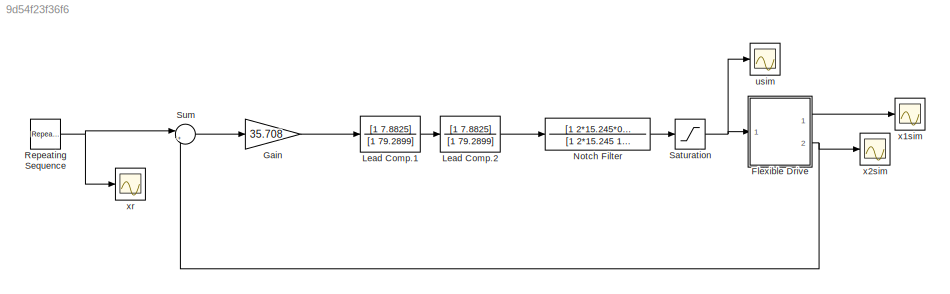
MODEL slx_9d54f23f36f6
KIND model
CONFIG AbsTol = auto
CONFIG EnableMultiTasking = on
CONFIG FixedStep = Ts
CONFIG MaxStep = auto
CONFIG MinStep = auto
CONFIG RelTol = 1e-3
CONFIG SampleTimeConstraint = Unconstrained
CONFIG SolverName = ode4
CONFIG StartTime = 0.0
CONFIG StopTime = 4
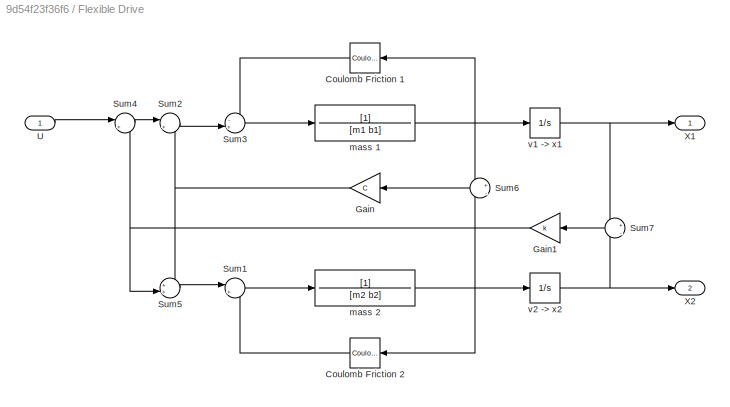
BLOCK [SubSystem] Flexible Drive
  Ports = [1, 2]
  RequestExecContextInheritance = off
BLOCK [Reference] Flexible Drive/Coulomb Friction 1  REF=simulink/Discontinuities/Coulomb &
Viscous Friction
  NameLocation = top
  Ports = [1, 1]
  SourceBlock = simulink/Discontinuities/Coulomb &\nViscous Friction
  SourceProductBaseCode = SL
  SourceType = Coulombic and Viscous Friction
BLOCK [Reference] Flexible Drive/Coulomb Friction 2  REF=simulink/Discontinuities/Coulomb &
Viscous Friction
  Ports = [1, 1]
  SourceBlock = simulink/Discontinuities/Coulomb &\nViscous Friction
  SourceProductBaseCode = SL
  SourceType = Coulombic and Viscous Friction
BLOCK [Gain] Flexible Drive/Gain
  Gain = C
  NameLocation = top
  OutDataTypeStr = Inherit: Same as input
  ParamDataTypeStr = Inherit: Same as input
  SaturateOnIntegerOverflow = on
BLOCK [Gain] Flexible Drive/Gain1
  Gain = k
  NameLocation = top
  OutDataTypeStr = Inherit: Same as input
  ParamDataTypeStr = Inherit: Same as input
  SaturateOnIntegerOverflow = on
BLOCK [Sum] Flexible Drive/Sum1
  Inputs = |+-
  Ports = [2, 1]
  SaturateOnIntegerOverflow = on
BLOCK [Sum] Flexible Drive/Sum2
  Inputs = |+-
  Ports = [2, 1]
  SaturateOnIntegerOverflow = on
BLOCK [Sum] Flexible Drive/Sum3
  Inputs = -+|
  Ports = [2, 1]
  SaturateOnIntegerOverflow = on
BLOCK [Sum] Flexible Drive/Sum4
  Inputs = |+-
  Ports = [2, 1]
  SaturateOnIntegerOverflow = on
BLOCK [Sum] Flexible Drive/Sum5
  Inputs = ++|
  Ports = [2, 1]
  SaturateOnIntegerOverflow = on
BLOCK [Sum] Flexible Drive/Sum6
  Inputs = +|-
  NameLocation = top
  Ports = [2, 1]
  SaturateOnIntegerOverflow = on
BLOCK [Sum] Flexible Drive/Sum7
  Inputs = +|-
  NameLocation = top
  Ports = [2, 1]
  SaturateOnIntegerOverflow = on
BLOCK [Inport] Flexible Drive/U
BLOCK [Outport] Flexible Drive/X1
  VectorParamsAs1DForOutWhenUnconnected = off
BLOCK [Outport] Flexible Drive/X2
  Port = 2
  VectorParamsAs1DForOutWhenUnconnected = off
BLOCK [TransferFcn] Flexible Drive/mass 1
  Denominator = [m1 b1]
  NameLocation = top
BLOCK [TransferFcn] Flexible Drive/mass 2
  Denominator = [m2 b2]
  NameLocation = top
BLOCK [Integrator] Flexible Drive/v1 -> x1
  Ports = [1, 1]
BLOCK [Integrator] Flexible Drive/v2 -> x2
  Ports = [1, 1]
BLOCK [Gain] Gain
  Gain = 35.708
BLOCK [TransferFcn] Lead Comp.1
  Denominator = [1 79.2899]
  Numerator = [1 7.8825]
BLOCK [TransferFcn] Lead Comp.2
  Denominator = [1 79.2899]
  Numerator = [1 7.8825]
BLOCK [TransferFcn] Notch Filter
  Denominator = [1 2*15.245 15.245^2]
  Numerator = [1 2*15.245*0.707 15.245^2]
BLOCK [Reference] Repeating Sequence  REF=simulink/Sources/Repeating
Sequence
  Ports = [0, 1]
  SourceBlock = simulink/Sources/Repeating\nSequence
  SourceProductBaseCode = SL
  SourceType = Repeating table
BLOCK [Saturate] Saturation
  LowerLimit = -8
  UpperLimit = 8
BLOCK [Sum] Sum
  Inputs = |+-
  Ports = [2, 1]
BLOCK [Scope] usim
  Floating = off
  NumInputPorts = 1
  Ports = [1]
  ScopeSpecificationString = Simulink.scopes.TimeScopeBlockCfg('CurrentConfiguration', extmgr.ConfigurationSet(extmgr.Configuration('Core','General UI',true),extmgr.Configuration('Core','Source UI',true),extmgr.Configuration('Sources','WiredSimulink',true,'DataLoggingVariableName','usim','DataLogging',true,'DataLoggingSaveFormat','StructureWithTime'),extmgr.Configuration('Visuals','Time Domain',true,'SerializedDisplays',{stru...<+1416ch>
BLOCK [Scope] x1sim
  Floating = off
  NumInputPorts = 1
  Ports = [1]
  ScopeSpecificationString = Simulink.scopes.TimeScopeBlockCfg('CurrentConfiguration', extmgr.ConfigurationSet(extmgr.Configuration('Core','General UI',true),extmgr.Configuration('Core','Source UI',true),extmgr.Configuration('Sources','WiredSimulink',true,'DataLoggingVariableName','x1sim','DataLogging',true,'DataLoggingSaveFormat','StructureWithTime'),extmgr.Configuration('Visuals','Time Domain',true,'SerializedDisplays',{str...<+1515ch>
BLOCK [Scope] x2sim
  Floating = off
  NumInputPorts = 1
  Ports = [1]
  ScopeSpecificationString = Simulink.scopes.TimeScopeBlockCfg('CurrentConfiguration', extmgr.ConfigurationSet(extmgr.Configuration('Core','General UI',true),extmgr.Configuration('Core','Source UI',true),extmgr.Configuration('Sources','WiredSimulink',true,'DataLogging',true,'DataLoggingVariableName','x2sim','DataLoggingSaveFormat','StructureWithTime'),extmgr.Configuration('Visuals','Time Domain',true,'SerializedDisplays',{str...<+1518ch>
BLOCK [Scope] xr
  Floating = off
  NumInputPorts = 1
  Ports = [1]
  ScopeSpecificationString = Simulink.scopes.TimeScopeBlockCfg('CurrentConfiguration', extmgr.ConfigurationSet(extmgr.Configuration('Core','General UI',true),extmgr.Configuration('Core','Source UI',true),extmgr.Configuration('Sources','WiredSimulink',true,'DataLoggingVariableName','xr','DataLogging',true,'DataLoggingSaveFormat','StructureWithTime'),extmgr.Configuration('Visuals','Time Domain',true,'SerializedDisplays',{struct...<+1472ch>
LINE Flexible Drive/Coulomb Friction 1:1 -> Flexible Drive/Sum3:1
LINE Flexible Drive/Coulomb Friction 2:1 -> Flexible Drive/Sum1:2
NET Flexible Drive/Gain1:1 -> Flexible Drive/Sum4:2, Flexible Drive/Sum5:2
NET Flexible Drive/Gain:1 -> Flexible Drive/Sum2:2, Flexible Drive/Sum5:1
LINE Flexible Drive/Sum1:1 -> Flexible Drive/mass 2:1
LINE Flexible Drive/Sum2:1 -> Flexible Drive/Sum3:2
LINE Flexible Drive/Sum3:1 -> Flexible Drive/mass 1:1
LINE Flexible Drive/Sum4:1 -> Flexible Drive/Sum2:1
LINE Flexible Drive/Sum5:1 -> Flexible Drive/Sum1:1
LINE Flexible Drive/Sum6:1 -> Flexible Drive/Gain:1
LINE Flexible Drive/Sum7:1 -> Flexible Drive/Gain1:1
LINE Flexible Drive/U:1 -> Flexible Drive/Sum4:1
NET Flexible Drive/mass 1:1 -> Flexible Drive/Coulomb Friction 1:1, Flexible Drive/Sum6:1, Flexible Drive/v1 -> x1:1
NET Flexible Drive/mass 2:1 -> Flexible Drive/Coulomb Friction 2:1, Flexible Drive/Sum6:2, Flexible Drive/v2 -> x2:1
NET Flexible Drive/v1 -> x1:1 -> Flexible Drive/Sum7:1, Flexible Drive/X1:1
NET Flexible Drive/v2 -> x2:1 -> Flexible Drive/Sum7:2, Flexible Drive/X2:1
LINE Flexible Drive:1 -> x1sim:1
NET Flexible Drive:2 -> Sum:2, x2sim:1
LINE Gain:1 -> Lead Comp.1:1
LINE Lead Comp.1:1 -> Lead Comp.2:1
LINE Lead Comp.2:1 -> Notch Filter:1
LINE Notch Filter:1 -> Saturation:1
NET Repeating Sequence:1 -> Sum:1, xr:1
NET Saturation:1 -> Flexible Drive:1, usim:1
LINE Sum:1 -> Gain:1
note: NET lines group one-source signal fan-out (src -> all destinations, sorted); 1:1 wires keep LINE
